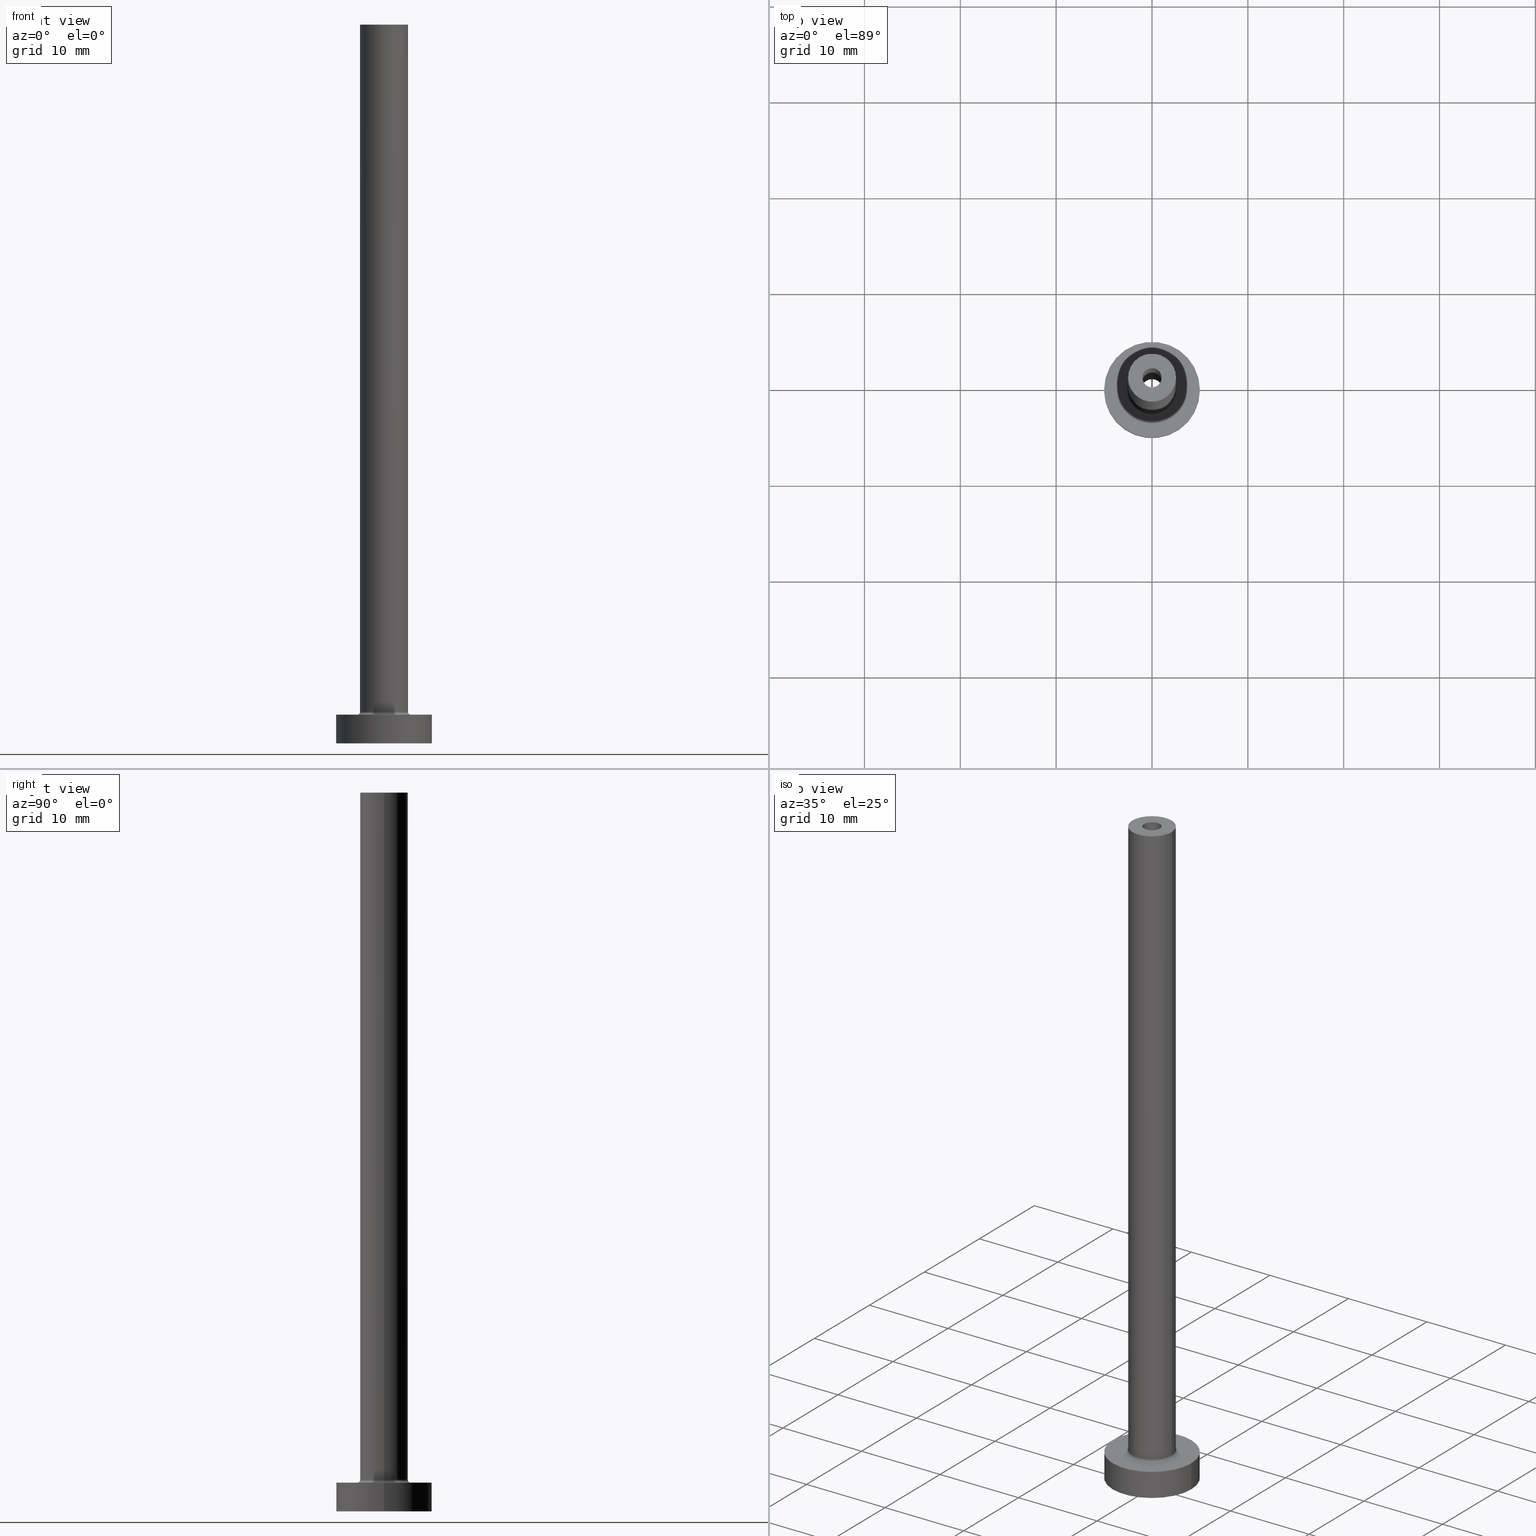
[diagram: canonical four-view strip — front | top / right | iso, engineering-drawing reading convention]
A machine part, canonical four-view strip (front | top / right | iso — engineering-drawing reading convention). The complete STEP part file that produces these views, byte-faithful:
ISO-10303-21;
HEADER;
FILE_DESCRIPTION (( 'STEP AP203' ),
    '1' );
FILE_NAME ('7a40.STEP',
    '2024-04-12T09:43:08',
    ( '' ),
    ( '' ),
    'SwSTEP 2.0',
    'SolidWorks 2019',
    '' );
FILE_SCHEMA (( 'CONFIG_CONTROL_DESIGN' ));
ENDSEC;

DATA;
#1 = VERTEX_POINT ( 'NONE', #319 ) ;
#2 = ORIENTED_EDGE ( 'NONE', *, *, #221, .F. ) ;
#3 = CARTESIAN_POINT ( 'NONE',  ( 0.000000000000000000, 0.000000000000000000, 0.000000000000000000 ) ) ;
#4 = EDGE_CURVE ( 'NONE', #461, #181, #80, .T. ) ;
#5 = DIRECTION ( 'NONE',  ( -0.000000000000000000, -0.000000000000000000, -1.000000000000000000 ) ) ;
#6 = CARTESIAN_POINT ( 'NONE',  ( 0.000000000000000000, 0.000000000000000000, 3.299999999999997158 ) ) ;
#7 = DIRECTION ( 'NONE',  ( 0.000000000000000000, 0.000000000000000000, -1.000000000000000000 ) ) ;
#8 = EDGE_LOOP ( 'NONE', ( #71, #295, #104, #197 ) ) ;
#9 = AXIS2_PLACEMENT_3D ( 'NONE', #22, #238, #338 ) ;
#10 = DIRECTION ( 'NONE',  ( -0.000000000000000000, -0.000000000000000000, -1.000000000000000000 ) ) ;
#11 = DIRECTION ( 'NONE',  ( -0.000000000000000000, -0.000000000000000000, -1.000000000000000000 ) ) ;
#12 = EDGE_LOOP ( 'NONE', ( #35, #161 ) ) ;
#13 = FACE_OUTER_BOUND ( 'NONE', #281, .T. ) ;
#14 = AXIS2_PLACEMENT_3D ( 'NONE', #208, #203, #333 ) ;
#15 = CC_DESIGN_PERSON_AND_ORGANIZATION_ASSIGNMENT ( #376, #175, ( #220 ) ) ;
#16 = EDGE_CURVE ( 'NONE', #419, #316, #165, .T. ) ;
#17 = EDGE_CURVE ( 'NONE', #183, #1, #214, .T. ) ;
#18 = AXIS2_PLACEMENT_3D ( 'NONE', #349, #36, #382 ) ;
#19 = DIRECTION ( 'NONE',  ( 1.000000000000000000, 0.000000000000000000, 0.000000000000000000 ) ) ;
#20 = FACE_OUTER_BOUND ( 'NONE', #8, .T. ) ;
#21 = APPROVAL_STATUS ( 'not_yet_approved' ) ;
#22 = CARTESIAN_POINT ( 'NONE',  ( 0.000000000000000000, 0.000000000000000000, 75.00000000000001421 ) ) ;
#23 = CIRCLE ( 'NONE', #417, 5.000000000000000000 ) ;
#24 = APPLICATION_CONTEXT ( 'configuration controlled 3d designs of mechanical parts and assemblies' ) ;
#25 = APPROVAL_DATE_TIME ( #343, #446 ) ;
#26 = FACE_OUTER_BOUND ( 'NONE', #329, .T. ) ;
#27 = APPLICATION_PROTOCOL_DEFINITION ( 'international standard', 'config_control_design', 1994, #24 ) ;
#28 = CARTESIAN_POINT ( 'NONE',  ( -1.149999999999999911, 0.000000000000000000, 0.000000000000000000 ) ) ;
#29 = DATE_AND_TIME ( #421, #426 ) ;
#30 = DIRECTION ( 'NONE',  ( 0.000000000000000000, 0.000000000000000000, -1.000000000000000000 ) ) ;
#31 = EDGE_CURVE ( 'NONE', #398, #423, #102, .T. ) ;
#32 = VERTEX_POINT ( 'NONE', #218 ) ;
#33 = VECTOR ( 'NONE', #194, 1000.000000000000000 ) ;
#34 = ORIENTED_EDGE ( 'NONE', *, *, #232, .F. ) ;
#35 = ORIENTED_EDGE ( 'NONE', *, *, #207, .T. ) ;
#36 = DIRECTION ( 'NONE',  ( 0.000000000000000000, 0.000000000000000000, 1.000000000000000000 ) ) ;
#37 = EDGE_LOOP ( 'NONE', ( #224, #459, #254, #245 ) ) ;
#38 = EDGE_CURVE ( 'NONE', #347, #120, #313, .T. ) ;
#39 = DIRECTION ( 'NONE',  ( 0.000000000000000000, 0.000000000000000000, -1.000000000000000000 ) ) ;
#40 = CARTESIAN_POINT ( 'NONE',  ( -2.500000000000000000, 0.000000000000000000, 75.00000000000001421 ) ) ;
#41 = AXIS2_PLACEMENT_3D ( 'NONE', #324, #117, #397 ) ;
#42 = DIRECTION ( 'NONE',  ( 1.000000000000000000, 0.000000000000000000, 0.000000000000000000 ) ) ;
#43 = AXIS2_PLACEMENT_3D ( 'NONE', #160, #430, #42 ) ;
#44 = FACE_OUTER_BOUND ( 'NONE', #440, .T. ) ;
#45 = ORIENTED_EDGE ( 'NONE', *, *, #454, .T. ) ;
#46 = DIRECTION ( 'NONE',  ( 0.000000000000000000, 0.000000000000000000, 1.000000000000000000 ) ) ;
#47 = CARTESIAN_POINT ( 'NONE',  ( 1.000000000000000000, 1.224646799147353207E-16, 40.00000000000000711 ) ) ;
#48 = ORIENTED_EDGE ( 'NONE', *, *, #136, .T. ) ;
#49 = CIRCLE ( 'NONE', #195, 1.000000000000000000 ) ;
#50 = DIRECTION ( 'NONE',  ( 0.000000000000000000, 0.000000000000000000, -1.000000000000000000 ) ) ;
#51 = ORGANIZATION ( 'NEUR�EN�', 'NEUR�EN�', '' ) ;
#52 =( LENGTH_UNIT ( ) NAMED_UNIT ( * ) SI_UNIT ( .MILLI., .METRE. ) );
#53 = CC_DESIGN_DATE_AND_TIME_ASSIGNMENT ( #29, #458, ( #364 ) ) ;
#54 = EDGE_CURVE ( 'NONE', #316, #216, #146, .T. ) ;
#55 = AXIS2_PLACEMENT_3D ( 'NONE', #162, #399, #405 ) ;
#56 = PLANE ( 'NONE',  #14 ) ;
#57 = PERSON_AND_ORGANIZATION_ROLE ( 'classification_officer' ) ;
#58 = DIRECTION ( 'NONE',  ( 0.000000000000000000, 0.000000000000000000, -1.000000000000000000 ) ) ;
#59 = DATE_AND_TIME ( #303, #115 ) ;
#60 = LINE ( 'NONE', #134, #298 ) ;
#61 = ORIENTED_EDGE ( 'NONE', *, *, #16, .F. ) ;
#62 = SECURITY_CLASSIFICATION_LEVEL ( 'unclassified' ) ;
#63 = FACE_BOUND ( 'NONE', #215, .T. ) ;
#64 = PERSON_AND_ORGANIZATION ( #69, #51 ) ;
#65 = CC_DESIGN_PERSON_AND_ORGANIZATION_ASSIGNMENT ( #380, #57, ( #364 ) ) ;
#66 = EDGE_CURVE ( 'NONE', #216, #290, #339, .T. ) ;
#67 = ORIENTED_EDGE ( 'NONE', *, *, #122, .T. ) ;
#68 = EDGE_CURVE ( 'NONE', #213, #348, #147, .T. ) ;
#69 = PERSON ( 'NEUR�EN�', 'NEUR�EN�', 'NEUR�EN�', ('NEUR�EN�'), ('NEUR�EN�'), ('NEUR�EN�') ) ;
#70 = ORIENTED_EDGE ( 'NONE', *, *, #190, .F. ) ;
#71 = ORIENTED_EDGE ( 'NONE', *, *, #233, .T. ) ;
#72 = AXIS2_PLACEMENT_3D ( 'NONE', #261, #10, #198 ) ;
#73 = ORIENTED_EDGE ( 'NONE', *, *, #221, .T. ) ;
#74 = ORIENTED_EDGE ( 'NONE', *, *, #152, .T. ) ;
#75 = EDGE_LOOP ( 'NONE', ( #350, #110 ) ) ;
#76 = DIRECTION ( 'NONE',  ( -1.000000000000000000, 0.000000000000000000, 0.000000000000000000 ) ) ;
#77 = CYLINDRICAL_SURFACE ( 'NONE', #420, 1.000000000000000000 ) ;
#78 = DIRECTION ( 'NONE',  ( 1.000000000000000000, 0.000000000000000000, 0.000000000000000000 ) ) ;
#79 = ORIENTED_EDGE ( 'NONE', *, *, #66, .T. ) ;
#80 = CIRCLE ( 'NONE', #332, 5.000000000000000000 ) ;
#81 = CARTESIAN_POINT ( 'NONE',  ( 2.500000000000000000, 3.061616997868383141E-16, 3.299999999999997158 ) ) ;
#82 = ORIENTED_EDGE ( 'NONE', *, *, #431, .F. ) ;
#83 = CARTESIAN_POINT ( 'NONE',  ( -5.000000000000000000, 0.000000000000000000, 3.000000000000000000 ) ) ;
#84 = CIRCLE ( 'NONE', #164, 1.149999999999999911 ) ;
#85 = CARTESIAN_POINT ( 'NONE',  ( -5.000000000000000000, 0.000000000000000000, 0.000000000000000000 ) ) ;
#86 = CARTESIAN_POINT ( 'NONE',  ( 5.000000000000000000, 6.123233995736766282E-16, 3.000000000000000000 ) ) ;
#87 = VECTOR ( 'NONE', #388, 1000.000000000000000 ) ;
#88 = UNCERTAINTY_MEASURE_WITH_UNIT (LENGTH_MEASURE( 1.000000000000000082E-05 ), #52, 'distance_accuracy_value', 'NONE');
#89 = CARTESIAN_POINT ( 'NONE',  ( -2.500000000000000000, 0.000000000000000000, 3.299999999999997158 ) ) ;
#90 = CARTESIAN_POINT ( 'NONE',  ( 0.000000000000000000, 0.000000000000000000, 3.299999999999997158 ) ) ;
#91 = LOCAL_TIME ( 11, 43, 8.000000000000000000, #100 ) ;
#92 = PERSON_AND_ORGANIZATION ( #69, #51 ) ;
#93 = CARTESIAN_POINT ( 'NONE',  ( 0.000000000000000000, 0.000000000000000000, 0.000000000000000000 ) ) ;
#94 = APPROVAL_ROLE ( '' ) ;
#95 = FACE_OUTER_BOUND ( 'NONE', #178, .T. ) ;
#96 = MECHANICAL_CONTEXT ( 'NONE', #24, 'mechanical' ) ;
#97 = CYLINDRICAL_SURFACE ( 'NONE', #408, 2.500000000000000000 ) ;
#98 = CIRCLE ( 'NONE', #123, 0.2999999999999999334 ) ;
#99 = CC_DESIGN_PERSON_AND_ORGANIZATION_ASSIGNMENT ( #64, #270, ( #244 ) ) ;
#100 = COORDINATED_UNIVERSAL_TIME_OFFSET ( 1, 0, .AHEAD. ) ;
#101 = ADVANCED_FACE ( 'NONE', ( #253 ), #222, .T. ) ;
#102 = CIRCLE ( 'NONE', #18, 5.000000000000000000 ) ;
#103 = DIRECTION ( 'NONE',  ( -0.000000000000000000, -0.000000000000000000, -1.000000000000000000 ) ) ;
#104 = ORIENTED_EDGE ( 'NONE', *, *, #153, .F. ) ;
#105 = ORIENTED_EDGE ( 'NONE', *, *, #326, .T. ) ;
#106 = PRODUCT_DEFINITION_SHAPE ( 'NONE', 'NONE',  #220 ) ;
#107 = AXIS2_PLACEMENT_3D ( 'NONE', #305, #407, #453 ) ;
#108 = CARTESIAN_POINT ( 'NONE',  ( 0.000000000000000000, 0.000000000000000000, 75.00000000000001421 ) ) ;
#109 = ORIENTED_EDGE ( 'NONE', *, *, #342, .T. ) ;
#110 = ORIENTED_EDGE ( 'NONE', *, *, #137, .F. ) ;
#111 = CARTESIAN_POINT ( 'NONE',  ( -2.799999999999999822, 3.429011037612588783E-16, 3.299999999999997158 ) ) ;
#112 = ORIENTED_EDGE ( 'NONE', *, *, #341, .F. ) ;
#113 = CARTESIAN_POINT ( 'NONE',  ( -5.000000000000000000, 0.000000000000000000, 3.000000000000000000 ) ) ;
#114 = CARTESIAN_POINT ( 'NONE',  ( -1.149999999999999911, 0.000000000000000000, 43.25269119345811930 ) ) ;
#115 = LOCAL_TIME ( 11, 43, 8.000000000000000000, #311 ) ;
#116 = ADVANCED_FACE ( 'NONE', ( #358 ), #77, .F. ) ;
#117 = DIRECTION ( 'NONE',  ( 0.000000000000000000, 0.000000000000000000, 1.000000000000000000 ) ) ;
#118 = ORIENTED_EDGE ( 'NONE', *, *, #431, .T. ) ;
#119 = CARTESIAN_POINT ( 'NONE',  ( 0.000000000000000000, 0.000000000000000000, 40.00000000000000711 ) ) ;
#120 = VERTEX_POINT ( 'NONE', #47 ) ;
#121 = DIRECTION ( 'NONE',  ( 1.000000000000000000, 0.000000000000000000, -0.000000000000000000 ) ) ;
#122 = EDGE_CURVE ( 'NONE', #423, #461, #320, .T. ) ;
#123 = AXIS2_PLACEMENT_3D ( 'NONE', #111, #191, #322 ) ;
#124 =( NAMED_UNIT ( * ) PLANE_ANGLE_UNIT ( ) SI_UNIT ( $, .RADIAN. ) );
#125 = SHAPE_DEFINITION_REPRESENTATION ( #106, #273 ) ;
#126 = ORIENTED_EDGE ( 'NONE', *, *, #16, .T. ) ;
#127 = DIRECTION ( 'NONE',  ( -1.000000000000000000, 0.000000000000000000, 0.000000000000000000 ) ) ;
#128 = AXIS2_PLACEMENT_3D ( 'NONE', #275, #351, #39 ) ;
#129 = DIRECTION ( 'NONE',  ( 1.000000000000000000, 0.000000000000000000, 0.000000000000000000 ) ) ;
#130 = AXIS2_PLACEMENT_3D ( 'NONE', #259, #289, #395 ) ;
#131 = FACE_OUTER_BOUND ( 'NONE', #12, .T. ) ;
#132 = CIRCLE ( 'NONE', #72, 1.149999999999999911 ) ;
#133 = DIRECTION ( 'NONE',  ( 0.000000000000000000, 0.000000000000000000, 1.000000000000000000 ) ) ;
#134 = CARTESIAN_POINT ( 'NONE',  ( 1.149999999999999911, 1.408343819019456028E-16, 43.25269119345811930 ) ) ;
#135 = DIRECTION ( 'NONE',  ( 0.000000000000000000, 0.000000000000000000, 1.000000000000000000 ) ) ;
#136 = EDGE_CURVE ( 'NONE', #32, #290, #189, .T. ) ;
#137 = EDGE_CURVE ( 'NONE', #347, #183, #241, .T. ) ;
#138 = PERSON_AND_ORGANIZATION ( #69, #51 ) ;
#139 = ORIENTED_EDGE ( 'NONE', *, *, #54, .F. ) ;
#140 = APPLICATION_PROTOCOL_DEFINITION ( 'international standard', 'config_control_design', 1994, #182 ) ;
#141 = CARTESIAN_POINT ( 'NONE',  ( 0.000000000000000000, 0.000000000000000000, 0.000000000000000000 ) ) ;
#142 = EDGE_LOOP ( 'NONE', ( #249, #70, #79, #292 ) ) ;
#143 = EDGE_LOOP ( 'NONE', ( #180, #390 ) ) ;
#144 = ORIENTED_EDGE ( 'NONE', *, *, #122, .F. ) ;
#145 = AXIS2_PLACEMENT_3D ( 'NONE', #223, #400, #352 ) ;
#146 = LINE ( 'NONE', #285, #87 ) ;
#147 = CIRCLE ( 'NONE', #299, 1.149999999999999911 ) ;
#148 = ORIENTED_EDGE ( 'NONE', *, *, #454, .F. ) ;
#149 = CARTESIAN_POINT ( 'NONE',  ( 0.000000000000000000, 0.000000000000000000, 75.00000000000001421 ) ) ;
#150 = CC_DESIGN_PERSON_AND_ORGANIZATION_ASSIGNMENT ( #371, #263, ( #369 ) ) ;
#151 = DIRECTION ( 'NONE',  ( 0.000000000000000000, 0.000000000000000000, 1.000000000000000000 ) ) ;
#152 = EDGE_CURVE ( 'NONE', #419, #422, #251, .T. ) ;
#153 = EDGE_CURVE ( 'NONE', #1, #120, #49, .T. ) ;
#154 = ORIENTED_EDGE ( 'NONE', *, *, #342, .F. ) ;
#155 = CIRCLE ( 'NONE', #145, 1.000000000000000000 ) ;
#156 = CARTESIAN_POINT ( 'NONE',  ( 5.000000000000000000, 6.123233995736766282E-16, 0.000000000000000000 ) ) ;
#157 = ORIENTED_EDGE ( 'NONE', *, *, #357, .T. ) ;
#158 = APPROVAL_PERSON_ORGANIZATION ( #92, #276, #455 ) ;
#159 = CIRCLE ( 'NONE', #199, 1.149999999999999911 ) ;
#160 = CARTESIAN_POINT ( 'NONE',  ( 0.000000000000000000, 0.000000000000000000, 75.00000000000001421 ) ) ;
#161 = ORIENTED_EDGE ( 'NONE', *, *, #31, .T. ) ;
#162 = CARTESIAN_POINT ( 'NONE',  ( 0.000000000000000000, 0.000000000000000000, 3.000000000000000000 ) ) ;
#163 = CYLINDRICAL_SURFACE ( 'NONE', #55, 5.000000000000000000 ) ;
#164 = AXIS2_PLACEMENT_3D ( 'NONE', #309, #456, #129 ) ;
#165 = CIRCLE ( 'NONE', #278, 2.500000000000000000 ) ;
#166 = CARTESIAN_POINT ( 'NONE',  ( 0.000000000000000000, 0.000000000000000000, 3.299999999999997158 ) ) ;
#167 = DIRECTION ( 'NONE',  ( 0.000000000000000000, 0.000000000000000000, 1.000000000000000000 ) ) ;
#168 = CARTESIAN_POINT ( 'NONE',  ( 0.000000000000000000, 0.000000000000000000, 0.000000000000000000 ) ) ;
#169 = CIRCLE ( 'NONE', #130, 5.000000000000000000 ) ;
#170 = CC_DESIGN_APPROVAL ( #276, ( #364 ) ) ;
#171 = CARTESIAN_POINT ( 'NONE',  ( 0.000000000000000000, 0.000000000000000000, 75.00000000000001421 ) ) ;
#172 = COORDINATED_UNIVERSAL_TIME_OFFSET ( 1, 0, .AHEAD. ) ;
#173 = CARTESIAN_POINT ( 'NONE',  ( 1.149999999999999911, 1.408343819019456028E-16, 40.00000000000000711 ) ) ;
#174 = EDGE_CURVE ( 'NONE', #422, #32, #98, .T. ) ;
#175 = PERSON_AND_ORGANIZATION_ROLE ( 'creator' ) ;
#176 = CARTESIAN_POINT ( 'NONE',  ( 0.000000000000000000, 0.000000000000000000, 40.00000000000000711 ) ) ;
#177 = DATE_AND_TIME ( #209, #247 ) ;
#178 = EDGE_LOOP ( 'NONE', ( #444, #283, #73, #118 ) ) ;
#179 = APPROVAL_PERSON_ORGANIZATION ( #373, #446, #308 ) ;
#180 = ORIENTED_EDGE ( 'NONE', *, *, #153, .T. ) ;
#181 = VERTEX_POINT ( 'NONE', #156 ) ;
#182 = APPLICATION_CONTEXT ( 'configuration controlled 3d designs of mechanical parts and assemblies' ) ;
#183 = VERTEX_POINT ( 'NONE', #294 ) ;
#184 = CARTESIAN_POINT ( 'NONE',  ( 1.000000000000000000, 1.224646799147353207E-16, 75.00000000000001421 ) ) ;
#185 = AXIS2_PLACEMENT_3D ( 'NONE', #166, #135, #274 ) ;
#186 = DIRECTION ( 'NONE',  ( 1.000000000000000000, 0.000000000000000000, 0.000000000000000000 ) ) ;
#187 = DIRECTION ( 'NONE',  ( -0.000000000000000000, -0.000000000000000000, -1.000000000000000000 ) ) ;
#188 = APPROVAL ( #452, 'NEUR�EN�' ) ;
#189 = CIRCLE ( 'NONE', #445, 2.799999999999999822 ) ;
#190 = EDGE_CURVE ( 'NONE', #216, #422, #375, .T. ) ;
#191 = DIRECTION ( 'NONE',  ( 1.224646799147353207E-16, 1.000000000000000000, -0.000000000000000000 ) ) ;
#192 = FACE_OUTER_BOUND ( 'NONE', #142, .T. ) ;
#193 = EDGE_LOOP ( 'NONE', ( #126, #109 ) ) ;
#194 = DIRECTION ( 'NONE',  ( -0.000000000000000000, -0.000000000000000000, -1.000000000000000000 ) ) ;
#195 = AXIS2_PLACEMENT_3D ( 'NONE', #119, #256, #389 ) ;
#196 = CARTESIAN_POINT ( 'NONE',  ( 0.000000000000000000, 0.000000000000000000, 3.000000000000000000 ) ) ;
#197 = ORIENTED_EDGE ( 'NONE', *, *, #17, .F. ) ;
#198 = DIRECTION ( 'NONE',  ( 1.000000000000000000, 0.000000000000000000, 0.000000000000000000 ) ) ;
#199 = AXIS2_PLACEMENT_3D ( 'NONE', #362, #201, #330 ) ;
#200 = FACE_BOUND ( 'NONE', #75, .T. ) ;
#201 = DIRECTION ( 'NONE',  ( 0.000000000000000000, 0.000000000000000000, 1.000000000000000000 ) ) ;
#202 = AXIS2_PLACEMENT_3D ( 'NONE', #300, #58, #448 ) ;
#203 = DIRECTION ( 'NONE',  ( 0.000000000000000000, 0.000000000000000000, 1.000000000000000000 ) ) ;
#204 = CARTESIAN_POINT ( 'NONE',  ( 0.000000000000000000, 0.000000000000000000, 75.00000000000001421 ) ) ;
#205 = PERSON_AND_ORGANIZATION ( #69, #51 ) ;
#206 = VECTOR ( 'NONE', #219, 1000.000000000000000 ) ;
#207 = EDGE_CURVE ( 'NONE', #423, #398, #169, .T. ) ;
#208 = CARTESIAN_POINT ( 'NONE',  ( 0.000000000000000000, 0.000000000000000000, 40.00000000000000711 ) ) ;
#209 = CALENDAR_DATE ( 2024, 12, 4 ) ;
#210 = AXIS2_PLACEMENT_3D ( 'NONE', #328, #354, #76 ) ;
#211 = DIRECTION ( 'NONE',  ( -1.000000000000000000, 0.000000000000000000, 0.000000000000000000 ) ) ;
#212 = COORDINATED_UNIVERSAL_TIME_OFFSET ( 1, 0, .AHEAD. ) ;
#213 = VERTEX_POINT ( 'NONE', #439 ) ;
#214 = LINE ( 'NONE', #385, #321 ) ;
#215 = EDGE_LOOP ( 'NONE', ( #401, #48 ) ) ;
#216 = VERTEX_POINT ( 'NONE', #81 ) ;
#217 = ORIENTED_EDGE ( 'NONE', *, *, #174, .T. ) ;
#218 = CARTESIAN_POINT ( 'NONE',  ( -2.799999999999999822, 3.429011037612589276E-16, 2.999999999999998668 ) ) ;
#219 = DIRECTION ( 'NONE',  ( 0.000000000000000000, 0.000000000000000000, -1.000000000000000000 ) ) ;
#220 = PRODUCT_DEFINITION ( 'NEZN�M�', '', #369, #367 ) ;
#221 = EDGE_CURVE ( 'NONE', #325, #348, #255, .T. ) ;
#222 = CYLINDRICAL_SURFACE ( 'NONE', #210, 2.500000000000000000 ) ;
#223 = CARTESIAN_POINT ( 'NONE',  ( 0.000000000000000000, 0.000000000000000000, 75.00000000000001421 ) ) ;
#224 = ORIENTED_EDGE ( 'NONE', *, *, #38, .F. ) ;
#225 = FACE_OUTER_BOUND ( 'NONE', #315, .T. ) ;
#226 = ORIENTED_EDGE ( 'NONE', *, *, #326, .F. ) ;
#227 = CARTESIAN_POINT ( 'NONE',  ( 0.000000000000000000, 0.000000000000000000, 75.00000000000001421 ) ) ;
#228 = AXIS2_PLACEMENT_3D ( 'NONE', #90, #414, #374 ) ;
#229 = FACE_BOUND ( 'NONE', #250, .T. ) ;
#230 = PLANE ( 'NONE',  #268 ) ;
#231 = CARTESIAN_POINT ( 'NONE',  ( 0.000000000000000000, 0.000000000000000000, 3.000000000000000000 ) ) ;
#232 = EDGE_CURVE ( 'NONE', #290, #32, #302, .T. ) ;
#233 = EDGE_CURVE ( 'NONE', #183, #347, #155, .T. ) ;
#234 = DIRECTION ( 'NONE',  ( 1.000000000000000000, 0.000000000000000000, 0.000000000000000000 ) ) ;
#235 = DIRECTION ( 'NONE',  ( 0.000000000000000000, 0.000000000000000000, 1.000000000000000000 ) ) ;
#236 = ADVANCED_FACE ( 'NONE', ( #44 ), #392, .F. ) ;
#237 = CALENDAR_DATE ( 2024, 12, 4 ) ;
#238 = DIRECTION ( 'NONE',  ( 0.000000000000000000, 0.000000000000000000, -1.000000000000000000 ) ) ;
#239 = DIRECTION ( 'NONE',  ( 1.000000000000000000, 0.000000000000000000, 0.000000000000000000 ) ) ;
#240 = PERSON_AND_ORGANIZATION_ROLE ( 'creator' ) ;
#241 = CIRCLE ( 'NONE', #43, 1.000000000000000000 ) ;
#242 = DIRECTION ( 'NONE',  ( 1.000000000000000000, 0.000000000000000000, 0.000000000000000000 ) ) ;
#243 = ORIENTED_EDGE ( 'NONE', *, *, #4, .F. ) ;
#244 = PRODUCT ( '7a40', '7a40', '', ( #96 ) ) ;
#245 = ORIENTED_EDGE ( 'NONE', *, *, #286, .F. ) ;
#246 = CIRCLE ( 'NONE', #363, 1.000000000000000000 ) ;
#247 = LOCAL_TIME ( 11, 43, 8.000000000000000000, #306 ) ;
#248 = DIRECTION ( 'NONE',  ( 0.000000000000000000, 0.000000000000000000, 1.000000000000000000 ) ) ;
#249 = ORIENTED_EDGE ( 'NONE', *, *, #174, .F. ) ;
#250 = EDGE_LOOP ( 'NONE', ( #82, #282 ) ) ;
#251 = LINE ( 'NONE', #40, #318 ) ;
#252 = ADVANCED_FACE ( 'NONE', ( #192 ), #451, .F. ) ;
#253 = FACE_OUTER_BOUND ( 'NONE', #383, .T. ) ;
#254 = ORIENTED_EDGE ( 'NONE', *, *, #17, .T. ) ;
#255 = LINE ( 'NONE', #114, #206 ) ;
#256 = DIRECTION ( 'NONE',  ( 0.000000000000000000, 0.000000000000000000, 1.000000000000000000 ) ) ;
#257 = ORIENTED_EDGE ( 'NONE', *, *, #207, .F. ) ;
#258 = FACE_OUTER_BOUND ( 'NONE', #437, .T. ) ;
#259 = CARTESIAN_POINT ( 'NONE',  ( 0.000000000000000000, 0.000000000000000000, 3.000000000000000000 ) ) ;
#260 = ORIENTED_EDGE ( 'NONE', *, *, #357, .F. ) ;
#261 = CARTESIAN_POINT ( 'NONE',  ( 0.000000000000000000, 0.000000000000000000, 0.000000000000000000 ) ) ;
#262 = MANIFOLD_SOLID_BREP ( 'Odebrat vysunut�m4', #379 ) ;
#263 = PERSON_AND_ORGANIZATION_ROLE ( 'design_supplier' ) ;
#264 = VECTOR ( 'NONE', #317, 1000.000000000000000 ) ;
#265 = CARTESIAN_POINT ( 'NONE',  ( -2.500000000000000000, 0.000000000000000000, 75.00000000000001421 ) ) ;
#266 = ADVANCED_FACE ( 'NONE', ( #63, #131 ), #378, .T. ) ;
#267 = FACE_BOUND ( 'NONE', #143, .T. ) ;
#268 = AXIS2_PLACEMENT_3D ( 'NONE', #438, #402, #121 ) ;
#269 = DIRECTION ( 'NONE',  ( 0.000000000000000000, 0.000000000000000000, 1.000000000000000000 ) ) ;
#270 = PERSON_AND_ORGANIZATION_ROLE ( 'design_owner' ) ;
#271 = DIRECTION ( 'NONE',  ( -0.000000000000000000, -0.000000000000000000, -1.000000000000000000 ) ) ;
#272 = VERTEX_POINT ( 'NONE', #173 ) ;
#273 = ADVANCED_BREP_SHAPE_REPRESENTATION ( '7a40', ( #262, #410 ), #435 ) ;
#274 = DIRECTION ( 'NONE',  ( 1.000000000000000000, 0.000000000000000000, 0.000000000000000000 ) ) ;
#275 = CARTESIAN_POINT ( 'NONE',  ( 2.799999999999999822, 0.000000000000000000, 3.299999999999997158 ) ) ;
#276 = APPROVAL ( #21, 'NEUR�EN�' ) ;
#277 = DATE_AND_TIME ( #237, #293 ) ;
#278 = AXIS2_PLACEMENT_3D ( 'NONE', #108, #248, #186 ) ;
#279 = EDGE_CURVE ( 'NONE', #272, #213, #60, .T. ) ;
#280 = ORIENTED_EDGE ( 'NONE', *, *, #4, .T. ) ;
#281 = EDGE_LOOP ( 'NONE', ( #460, #45, #361, #144 ) ) ;
#282 = ORIENTED_EDGE ( 'NONE', *, *, #68, .F. ) ;
#283 = ORIENTED_EDGE ( 'NONE', *, *, #447, .T. ) ;
#284 = CIRCLE ( 'NONE', #353, 2.500000000000000000 ) ;
#285 = CARTESIAN_POINT ( 'NONE',  ( 2.500000000000000000, 3.061616997868383141E-16, 75.00000000000001421 ) ) ;
#286 = EDGE_CURVE ( 'NONE', #120, #1, #246, .T. ) ;
#287 = ORIENTED_EDGE ( 'NONE', *, *, #152, .F. ) ;
#288 = DIRECTION ( 'NONE',  ( 1.000000000000000000, 0.000000000000000000, 0.000000000000000000 ) ) ;
#289 = DIRECTION ( 'NONE',  ( 0.000000000000000000, 0.000000000000000000, 1.000000000000000000 ) ) ;
#290 = VERTEX_POINT ( 'NONE', #412 ) ;
#291 = CARTESIAN_POINT ( 'NONE',  ( 0.000000000000000000, 0.000000000000000000, 3.000000000000000000 ) ) ;
#292 = ORIENTED_EDGE ( 'NONE', *, *, #136, .F. ) ;
#293 = LOCAL_TIME ( 11, 43, 8.000000000000000000, #212 ) ;
#294 = CARTESIAN_POINT ( 'NONE',  ( -1.000000000000000000, 0.000000000000000000, 75.00000000000001421 ) ) ;
#295 = ORIENTED_EDGE ( 'NONE', *, *, #38, .T. ) ;
#296 = DIRECTION ( 'NONE',  ( 1.000000000000000000, 0.000000000000000000, -0.000000000000000000 ) ) ;
#297 = FACE_OUTER_BOUND ( 'NONE', #193, .T. ) ;
#298 = VECTOR ( 'NONE', #416, 1000.000000000000000 ) ;
#299 = AXIS2_PLACEMENT_3D ( 'NONE', #3, #103, #242 ) ;
#300 = CARTESIAN_POINT ( 'NONE',  ( 0.000000000000000000, 0.000000000000000000, 43.25269119345811930 ) ) ;
#301 = CARTESIAN_POINT ( 'NONE',  ( 2.500000000000000000, 3.061616997868383141E-16, 75.00000000000001421 ) ) ;
#302 = CIRCLE ( 'NONE', #403, 2.799999999999999822 ) ;
#303 = CALENDAR_DATE ( 2024, 12, 4 ) ;
#304 = AXIS2_PLACEMENT_3D ( 'NONE', #231, #368, #331 ) ;
#305 = CARTESIAN_POINT ( 'NONE',  ( 0.000000000000000000, 0.000000000000000000, 3.000000000000000000 ) ) ;
#306 = COORDINATED_UNIVERSAL_TIME_OFFSET ( 1, 0, .AHEAD. ) ;
#307 = CYLINDRICAL_SURFACE ( 'NONE', #327, 1.149999999999999911 ) ;
#308 = APPROVAL_ROLE ( '' ) ;
#309 = CARTESIAN_POINT ( 'NONE',  ( 0.000000000000000000, 0.000000000000000000, 40.00000000000000711 ) ) ;
#310 = ADVANCED_FACE ( 'NONE', ( #457 ), #97, .T. ) ;
#311 = COORDINATED_UNIVERSAL_TIME_OFFSET ( 1, 0, .AHEAD. ) ;
#312 = APPROVAL_PERSON_ORGANIZATION ( #205, #188, #94 ) ;
#313 = LINE ( 'NONE', #184, #264 ) ;
#314 = ORIENTED_EDGE ( 'NONE', *, *, #54, .T. ) ;
#315 = EDGE_LOOP ( 'NONE', ( #243, #112 ) ) ;
#316 = VERTEX_POINT ( 'NONE', #301 ) ;
#317 = DIRECTION ( 'NONE',  ( 0.000000000000000000, 0.000000000000000000, -1.000000000000000000 ) ) ;
#318 = VECTOR ( 'NONE', #433, 1000.000000000000000 ) ;
#319 = CARTESIAN_POINT ( 'NONE',  ( -1.000000000000000000, 0.000000000000000000, 40.00000000000000711 ) ) ;
#320 = LINE ( 'NONE', #113, #356 ) ;
#321 = VECTOR ( 'NONE', #30, 1000.000000000000000 ) ;
#322 = DIRECTION ( 'NONE',  ( -1.000000000000000000, 1.224646799147353207E-16, 0.000000000000000000 ) ) ;
#323 = CC_DESIGN_PERSON_AND_ORGANIZATION_ASSIGNMENT ( #138, #240, ( #369 ) ) ;
#324 = CARTESIAN_POINT ( 'NONE',  ( 0.000000000000000000, 0.000000000000000000, 3.299999999999997158 ) ) ;
#325 = VERTEX_POINT ( 'NONE', #450 ) ;
#326 = EDGE_CURVE ( 'NONE', #422, #216, #425, .T. ) ;
#327 = AXIS2_PLACEMENT_3D ( 'NONE', #360, #50, #127 ) ;
#328 = CARTESIAN_POINT ( 'NONE',  ( 0.000000000000000000, 0.000000000000000000, 75.00000000000001421 ) ) ;
#329 = EDGE_LOOP ( 'NONE', ( #157, #381, #387, #2 ) ) ;
#330 = DIRECTION ( 'NONE',  ( 1.000000000000000000, 0.000000000000000000, 0.000000000000000000 ) ) ;
#331 = DIRECTION ( 'NONE',  ( -1.000000000000000000, 0.000000000000000000, 0.000000000000000000 ) ) ;
#332 = AXIS2_PLACEMENT_3D ( 'NONE', #141, #344, #424 ) ;
#333 = DIRECTION ( 'NONE',  ( 1.000000000000000000, 0.000000000000000000, -0.000000000000000000 ) ) ;
#334 = DIRECTION ( 'NONE',  ( 1.000000000000000000, 0.000000000000000000, 0.000000000000000000 ) ) ;
#335 = CYLINDRICAL_SURFACE ( 'NONE', #9, 1.000000000000000000 ) ;
#336 = AXIS2_PLACEMENT_3D ( 'NONE', #6, #151, #391 ) ;
#337 = APPROVAL_STATUS ( 'not_yet_approved' ) ;
#338 = DIRECTION ( 'NONE',  ( -1.000000000000000000, 0.000000000000000000, 0.000000000000000000 ) ) ;
#339 = CIRCLE ( 'NONE', #128, 0.2999999999999999334 ) ;
#340 = CARTESIAN_POINT ( 'NONE',  ( 1.000000000000000000, 1.224646799147353207E-16, 75.00000000000001421 ) ) ;
#341 = EDGE_CURVE ( 'NONE', #181, #461, #23, .T. ) ;
#342 = EDGE_CURVE ( 'NONE', #316, #419, #284, .T. ) ;
#343 = DATE_AND_TIME ( #418, #91 ) ;
#344 = DIRECTION ( 'NONE',  ( 0.000000000000000000, 0.000000000000000000, 1.000000000000000000 ) ) ;
#345 = CC_DESIGN_APPROVAL ( #446, ( #369 ) ) ;
#346 = CC_DESIGN_APPROVAL ( #188, ( #220 ) ) ;
#347 = VERTEX_POINT ( 'NONE', #340 ) ;
#348 = VERTEX_POINT ( 'NONE', #28 ) ;
#349 = CARTESIAN_POINT ( 'NONE',  ( 0.000000000000000000, 0.000000000000000000, 3.000000000000000000 ) ) ;
#350 = ORIENTED_EDGE ( 'NONE', *, *, #233, .F. ) ;
#351 = DIRECTION ( 'NONE',  ( 0.000000000000000000, -1.000000000000000000, 0.000000000000000000 ) ) ;
#352 = DIRECTION ( 'NONE',  ( 1.000000000000000000, 0.000000000000000000, 0.000000000000000000 ) ) ;
#353 = AXIS2_PLACEMENT_3D ( 'NONE', #204, #167, #239 ) ;
#354 = DIRECTION ( 'NONE',  ( -0.000000000000000000, -0.000000000000000000, -1.000000000000000000 ) ) ;
#355 = PRODUCT_RELATED_PRODUCT_CATEGORY ( 'detail', '', ( #244 ) ) ;
#356 = VECTOR ( 'NONE', #11, 1000.000000000000000 ) ;
#357 = EDGE_CURVE ( 'NONE', #325, #272, #84, .T. ) ;
#358 = FACE_OUTER_BOUND ( 'NONE', #37, .T. ) ;
#359 = ORIENTED_EDGE ( 'NONE', *, *, #447, .F. ) ;
#360 = CARTESIAN_POINT ( 'NONE',  ( 0.000000000000000000, 0.000000000000000000, 43.25269119345811930 ) ) ;
#361 = ORIENTED_EDGE ( 'NONE', *, *, #341, .T. ) ;
#362 = CARTESIAN_POINT ( 'NONE',  ( 0.000000000000000000, 0.000000000000000000, 40.00000000000000711 ) ) ;
#363 = AXIS2_PLACEMENT_3D ( 'NONE', #176, #269, #19 ) ;
#364 = SECURITY_CLASSIFICATION ( '', '', #62 ) ;
#365 = ADVANCED_FACE ( 'NONE', ( #95 ), #372, .F. ) ;
#366 = PLANE ( 'NONE',  #384 ) ;
#367 = DESIGN_CONTEXT ( 'detailed design', #182, 'design' ) ;
#368 = DIRECTION ( 'NONE',  ( -0.000000000000000000, -0.000000000000000000, -1.000000000000000000 ) ) ;
#369 = PRODUCT_DEFINITION_FORMATION_WITH_SPECIFIED_SOURCE ( 'LIBOVOLN�', '', #244, .NOT_KNOWN. ) ;
#370 = FACE_OUTER_BOUND ( 'NONE', #427, .T. ) ;
#371 = PERSON_AND_ORGANIZATION ( #69, #51 ) ;
#372 = CYLINDRICAL_SURFACE ( 'NONE', #202, 1.149999999999999911 ) ;
#373 = PERSON_AND_ORGANIZATION ( #69, #51 ) ;
#374 = DIRECTION ( 'NONE',  ( 1.000000000000000000, 0.000000000000000000, 0.000000000000000000 ) ) ;
#375 = CIRCLE ( 'NONE', #336, 2.500000000000000000 ) ;
#376 = PERSON_AND_ORGANIZATION ( #69, #51 ) ;
#377 = ADVANCED_FACE ( 'NONE', ( #267, #370 ), #56, .F. ) ;
#378 = PLANE ( 'NONE',  #107 ) ;
#379 = CLOSED_SHELL ( 'NONE', ( #393, #394, #236, #310, #449, #415, #266, #409, #101, #432, #252, #365, #377, #116 ) ) ;
#380 = PERSON_AND_ORGANIZATION ( #69, #51 ) ;
#381 = ORIENTED_EDGE ( 'NONE', *, *, #279, .T. ) ;
#382 = DIRECTION ( 'NONE',  ( 1.000000000000000000, 0.000000000000000000, 0.000000000000000000 ) ) ;
#383 = EDGE_LOOP ( 'NONE', ( #139, #61, #74, #105 ) ) ;
#384 = AXIS2_PLACEMENT_3D ( 'NONE', #227, #46, #296 ) ;
#385 = CARTESIAN_POINT ( 'NONE',  ( -1.000000000000000000, 0.000000000000000000, 75.00000000000001421 ) ) ;
#386 = EDGE_LOOP ( 'NONE', ( #154, #314, #429, #287 ) ) ;
#387 = ORIENTED_EDGE ( 'NONE', *, *, #68, .T. ) ;
#388 = DIRECTION ( 'NONE',  ( -0.000000000000000000, -0.000000000000000000, -1.000000000000000000 ) ) ;
#389 = DIRECTION ( 'NONE',  ( 1.000000000000000000, 0.000000000000000000, 0.000000000000000000 ) ) ;
#390 = ORIENTED_EDGE ( 'NONE', *, *, #286, .T. ) ;
#391 = DIRECTION ( 'NONE',  ( 1.000000000000000000, 0.000000000000000000, 0.000000000000000000 ) ) ;
#392 = TOROIDAL_SURFACE ( 'NONE', #41, 2.799999999999999822, 0.2999999999999999889 ) ;
#393 = ADVANCED_FACE ( 'NONE', ( #20 ), #335, .F. ) ;
#394 = ADVANCED_FACE ( 'NONE', ( #26 ), #307, .F. ) ;
#395 = DIRECTION ( 'NONE',  ( 1.000000000000000000, 0.000000000000000000, 0.000000000000000000 ) ) ;
#396 = CARTESIAN_POINT ( 'NONE',  ( 5.000000000000000000, 6.123233995736766282E-16, 3.000000000000000000 ) ) ;
#397 = DIRECTION ( 'NONE',  ( 1.000000000000000000, 0.000000000000000000, 0.000000000000000000 ) ) ;
#398 = VERTEX_POINT ( 'NONE', #86 ) ;
#399 = DIRECTION ( 'NONE',  ( -0.000000000000000000, -0.000000000000000000, -1.000000000000000000 ) ) ;
#400 = DIRECTION ( 'NONE',  ( 0.000000000000000000, 0.000000000000000000, 1.000000000000000000 ) ) ;
#401 = ORIENTED_EDGE ( 'NONE', *, *, #232, .T. ) ;
#402 = DIRECTION ( 'NONE',  ( 0.000000000000000000, 0.000000000000000000, 1.000000000000000000 ) ) ;
#403 = AXIS2_PLACEMENT_3D ( 'NONE', #291, #187, #78 ) ;
#404 =( NAMED_UNIT ( * ) SI_UNIT ( $, .STERADIAN. ) SOLID_ANGLE_UNIT ( ) );
#405 = DIRECTION ( 'NONE',  ( -1.000000000000000000, 0.000000000000000000, 0.000000000000000000 ) ) ;
#406 = CC_DESIGN_DATE_AND_TIME_ASSIGNMENT ( #59, #413, ( #220 ) ) ;
#407 = DIRECTION ( 'NONE',  ( 0.000000000000000000, 0.000000000000000000, 1.000000000000000000 ) ) ;
#408 = AXIS2_PLACEMENT_3D ( 'NONE', #171, #271, #211 ) ;
#409 = ADVANCED_FACE ( 'NONE', ( #229, #225 ), #230, .F. ) ;
#410 = AXIS2_PLACEMENT_3D ( 'NONE', #168, #133, #334 ) ;
#411 = APPROVAL_DATE_TIME ( #277, #188 ) ;
#412 = CARTESIAN_POINT ( 'NONE',  ( 2.799999999999999822, 0.000000000000000000, 2.999999999999998668 ) ) ;
#413 = DATE_TIME_ROLE ( 'creation_date' ) ;
#414 = DIRECTION ( 'NONE',  ( 0.000000000000000000, 0.000000000000000000, 1.000000000000000000 ) ) ;
#415 = ADVANCED_FACE ( 'NONE', ( #258 ), #163, .T. ) ;
#416 = DIRECTION ( 'NONE',  ( 0.000000000000000000, 0.000000000000000000, -1.000000000000000000 ) ) ;
#417 = AXIS2_PLACEMENT_3D ( 'NONE', #93, #235, #234 ) ;
#418 = CALENDAR_DATE ( 2024, 12, 4 ) ;
#419 = VERTEX_POINT ( 'NONE', #265 ) ;
#420 = AXIS2_PLACEMENT_3D ( 'NONE', #149, #7, #436 ) ;
#421 = CALENDAR_DATE ( 2024, 12, 4 ) ;
#422 = VERTEX_POINT ( 'NONE', #89 ) ;
#423 = VERTEX_POINT ( 'NONE', #83 ) ;
#424 = DIRECTION ( 'NONE',  ( 1.000000000000000000, 0.000000000000000000, 0.000000000000000000 ) ) ;
#425 = CIRCLE ( 'NONE', #228, 2.500000000000000000 ) ;
#426 = LOCAL_TIME ( 11, 43, 8.000000000000000000, #172 ) ;
#427 = EDGE_LOOP ( 'NONE', ( #260, #359 ) ) ;
#428 = ORIENTED_EDGE ( 'NONE', *, *, #66, .F. ) ;
#429 = ORIENTED_EDGE ( 'NONE', *, *, #190, .T. ) ;
#430 = DIRECTION ( 'NONE',  ( 0.000000000000000000, 0.000000000000000000, 1.000000000000000000 ) ) ;
#431 = EDGE_CURVE ( 'NONE', #348, #213, #132, .T. ) ;
#432 = ADVANCED_FACE ( 'NONE', ( #200, #297 ), #366, .T. ) ;
#433 = DIRECTION ( 'NONE',  ( -0.000000000000000000, -0.000000000000000000, -1.000000000000000000 ) ) ;
#434 = CC_DESIGN_SECURITY_CLASSIFICATION ( #364, ( #369 ) ) ;
#435 =( GEOMETRIC_REPRESENTATION_CONTEXT ( 3 ) GLOBAL_UNCERTAINTY_ASSIGNED_CONTEXT ( ( #88 ) ) GLOBAL_UNIT_ASSIGNED_CONTEXT ( ( #52, #124, #404 ) ) REPRESENTATION_CONTEXT ( 'NONE', 'WORKASPACE' ) );
#436 = DIRECTION ( 'NONE',  ( -1.000000000000000000, 0.000000000000000000, 0.000000000000000000 ) ) ;
#437 = EDGE_LOOP ( 'NONE', ( #148, #257, #67, #280 ) ) ;
#438 = CARTESIAN_POINT ( 'NONE',  ( 0.000000000000000000, 0.000000000000000000, 0.000000000000000000 ) ) ;
#439 = CARTESIAN_POINT ( 'NONE',  ( 1.149999999999999911, 1.408343819019456028E-16, 0.000000000000000000 ) ) ;
#440 = EDGE_LOOP ( 'NONE', ( #226, #217, #34, #428 ) ) ;
#441 = CYLINDRICAL_SURFACE ( 'NONE', #304, 5.000000000000000000 ) ;
#442 = LINE ( 'NONE', #396, #33 ) ;
#443 = APPROVAL_DATE_TIME ( #177, #276 ) ;
#444 = ORIENTED_EDGE ( 'NONE', *, *, #279, .F. ) ;
#445 = AXIS2_PLACEMENT_3D ( 'NONE', #196, #5, #288 ) ;
#446 = APPROVAL ( #337, 'NEUR�EN�' ) ;
#447 = EDGE_CURVE ( 'NONE', #272, #325, #159, .T. ) ;
#448 = DIRECTION ( 'NONE',  ( -1.000000000000000000, 0.000000000000000000, 0.000000000000000000 ) ) ;
#449 = ADVANCED_FACE ( 'NONE', ( #13 ), #441, .T. ) ;
#450 = CARTESIAN_POINT ( 'NONE',  ( -1.149999999999999911, 0.000000000000000000, 40.00000000000000711 ) ) ;
#451 = TOROIDAL_SURFACE ( 'NONE', #185, 2.799999999999999822, 0.2999999999999999889 ) ;
#452 = APPROVAL_STATUS ( 'not_yet_approved' ) ;
#453 = DIRECTION ( 'NONE',  ( 1.000000000000000000, 0.000000000000000000, -0.000000000000000000 ) ) ;
#454 = EDGE_CURVE ( 'NONE', #398, #181, #442, .T. ) ;
#455 = APPROVAL_ROLE ( '' ) ;
#456 = DIRECTION ( 'NONE',  ( 0.000000000000000000, 0.000000000000000000, 1.000000000000000000 ) ) ;
#457 = FACE_OUTER_BOUND ( 'NONE', #386, .T. ) ;
#458 = DATE_TIME_ROLE ( 'classification_date' ) ;
#459 = ORIENTED_EDGE ( 'NONE', *, *, #137, .T. ) ;
#460 = ORIENTED_EDGE ( 'NONE', *, *, #31, .F. ) ;
#461 = VERTEX_POINT ( 'NONE', #85 ) ;
ENDSEC;
END-ISO-10303-21;
